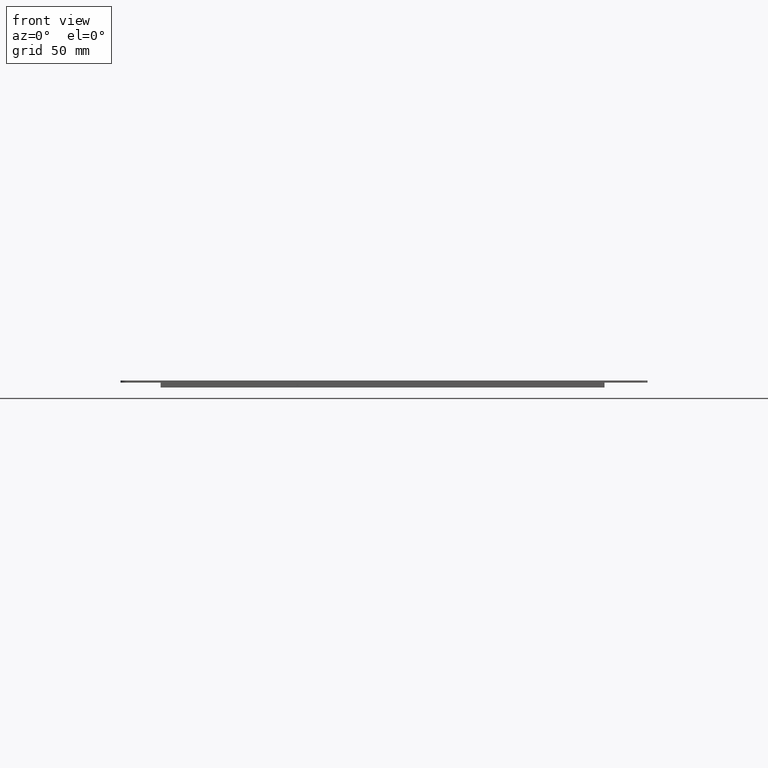
[diagram: clean part render]
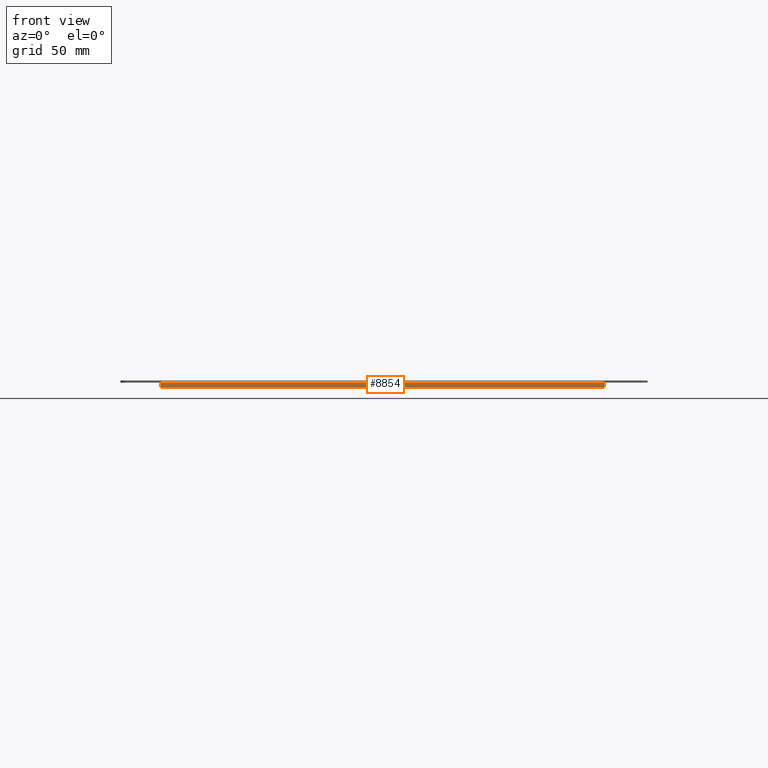
[diagram: same view with one face highlighted and labeled with its STEP entity id]
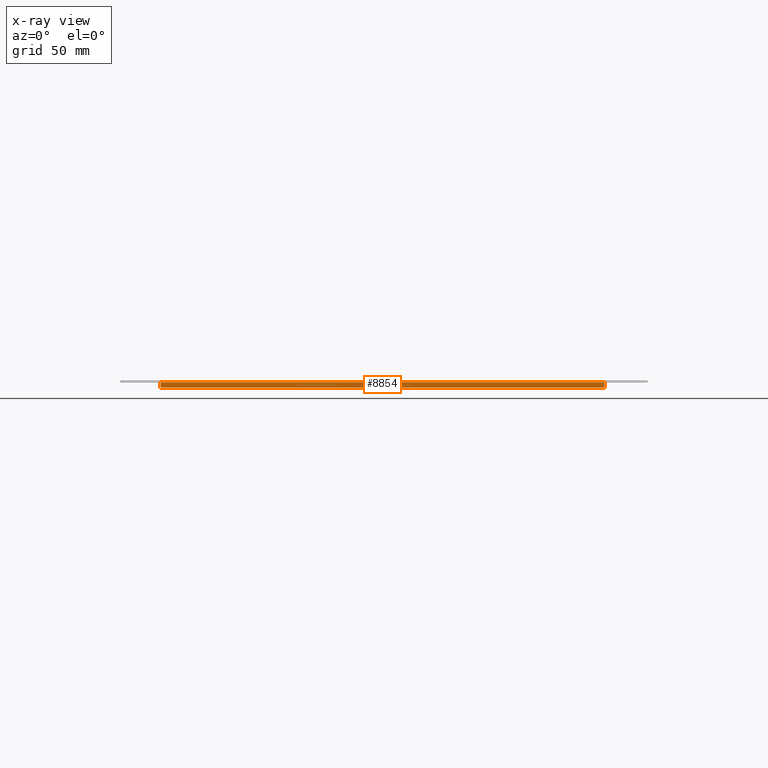
[diagram: x-ray of the same camera — body ghosted, the highlighted face saturated]
A machine part, front view. The second image highlights one B-rep face of the part: STEP entity #8854.
The next image is the same camera in x-ray: the body ghosted, the highlighted face saturated — about 2% of this face is hidden behind the body in this view.
In plain terms, the highlighted planar face has unit normal (0, -1, 0).
Its self-contained STEP definition (entity closure, byte-faithful):
#32=FACE_BOUND('',#915,.T.);
#33=FACE_BOUND('',#916,.T.);
#487=FACE_OUTER_BOUND('',#914,.T.);
#914=EDGE_LOOP('',(#7989,#7990,#7991,#7992));
#915=EDGE_LOOP('',(#7993,#7994,#7995,#7996));
#916=EDGE_LOOP('',(#7997,#7998,#7999,#8000));
#953=LINE('',#11519,#2198);
#961=LINE('',#11540,#2206);
#2139=LINE('',#13898,#3384);
#2144=LINE('',#13906,#3389);
#2145=LINE('',#13908,#3390);
#2147=LINE('',#13913,#3392);
#2150=LINE('',#13920,#3395);
#2155=LINE('',#13928,#3400);
#2156=LINE('',#13930,#3401);
#2159=LINE('',#13939,#3404);
#2160=LINE('',#13942,#3405);
#2161=LINE('',#13943,#3406);
#2198=VECTOR('',#9394,10.);
#2206=VECTOR('',#9410,10.);
#3384=VECTOR('',#11374,10.);
#3389=VECTOR('',#11383,10.);
#3390=VECTOR('',#11386,10.);
#3392=VECTOR('',#11390,10.);
#3395=VECTOR('',#11395,10.);
#3400=VECTOR('',#11404,10.);
#3401=VECTOR('',#11407,10.);
#3404=VECTOR('',#11418,10.);
#3405=VECTOR('',#11421,10.);
#3406=VECTOR('',#11422,10.);
#3439=VERTEX_POINT('',#11516);
#3440=VERTEX_POINT('',#11518);
#3448=VERTEX_POINT('',#11537);
#3449=VERTEX_POINT('',#11539);
#4234=VERTEX_POINT('',#13894);
#4236=VERTEX_POINT('',#13897);
#4238=VERTEX_POINT('',#13910);
#4239=VERTEX_POINT('',#13912);
#4240=VERTEX_POINT('',#13916);
#4242=VERTEX_POINT('',#13919);
#4245=VERTEX_POINT('',#13937);
#4246=VERTEX_POINT('',#13941);
#4289=EDGE_CURVE('',#3439,#3440,#953,.T.);
#4299=EDGE_CURVE('',#3449,#3448,#961,.T.);
#5477=EDGE_CURVE('',#4236,#4234,#2139,.T.);
#5482=EDGE_CURVE('',#4234,#3449,#2144,.T.);
#5483=EDGE_CURVE('',#3448,#4236,#2145,.T.);
#5485=EDGE_CURVE('',#4239,#4238,#2147,.T.);
#5488=EDGE_CURVE('',#4242,#4240,#2150,.T.);
#5493=EDGE_CURVE('',#4240,#4239,#2155,.T.);
#5494=EDGE_CURVE('',#4238,#4242,#2156,.T.);
#5497=EDGE_CURVE('',#3439,#4245,#2159,.T.);
#5498=EDGE_CURVE('',#4246,#4245,#2160,.T.);
#5499=EDGE_CURVE('',#3440,#4246,#2161,.T.);
#7989=ORIENTED_EDGE('',*,*,#4289,.F.);
#7990=ORIENTED_EDGE('',*,*,#5497,.T.);
#7991=ORIENTED_EDGE('',*,*,#5498,.F.);
#7992=ORIENTED_EDGE('',*,*,#5499,.F.);
#7993=ORIENTED_EDGE('',*,*,#5477,.T.);
#7994=ORIENTED_EDGE('',*,*,#5482,.T.);
#7995=ORIENTED_EDGE('',*,*,#4299,.T.);
#7996=ORIENTED_EDGE('',*,*,#5483,.T.);
#7997=ORIENTED_EDGE('',*,*,#5488,.T.);
#7998=ORIENTED_EDGE('',*,*,#5493,.T.);
#7999=ORIENTED_EDGE('',*,*,#5485,.T.);
#8000=ORIENTED_EDGE('',*,*,#5494,.T.);
#8429=PLANE('',#9311);
#8854=ADVANCED_FACE('',(#487,#32,#33),#8429,.T.);
#9311=AXIS2_PLACEMENT_3D('',#13940,#11419,#11420);
#9394=DIRECTION('',(1.,2.32608927027532E-16,0.));
#9410=DIRECTION('',(0.,0.,-1.));
#11374=DIRECTION('',(0.,0.,1.));
#11383=DIRECTION('',(1.,2.32608927027532E-16,0.));
#11386=DIRECTION('',(-1.,-2.32608927027532E-16,0.));
#11390=DIRECTION('',(0.,0.,-1.));
#11395=DIRECTION('',(0.,0.,1.));
#11404=DIRECTION('',(1.,2.32608927027532E-16,0.));
#11407=DIRECTION('',(-1.,-2.32608927027532E-16,0.));
#11418=DIRECTION('',(0.,0.,-1.));
#11419=DIRECTION('center_axis',(2.32608927027532E-16,-1.,0.));
#11420=DIRECTION('ref_axis',(-1.,-2.32608927027532E-16,0.));
#11421=DIRECTION('',(-1.,-2.32608927027532E-16,0.));
#11422=DIRECTION('',(0.,0.,-1.));
#11516=CARTESIAN_POINT('',(-115.3,-93.8,0.));
#11518=CARTESIAN_POINT('',(113.8,-93.7999999999999,0.));
#11519=CARTESIAN_POINT('',(-115.3,-93.8,0.));
#11537=CARTESIAN_POINT('',(13.7800000000001,-93.8,-1.35));
#11539=CARTESIAN_POINT('',(13.7800000000001,-93.8,-1.25));
#11540=CARTESIAN_POINT('',(13.7800000000001,-93.8,-0.625));
#13894=CARTESIAN_POINT('',(-13.7199999999999,-93.8,-1.25));
#13897=CARTESIAN_POINT('',(-13.7199999999999,-93.8,-1.35));
#13898=CARTESIAN_POINT('',(-13.7199999999999,-93.8,-0.625));
#13906=CARTESIAN_POINT('',(56.7900000000001,-93.8,-1.25));
#13908=CARTESIAN_POINT('',(56.7900000000001,-93.8,-1.35));
#13910=CARTESIAN_POINT('',(-23.7199999999999,-93.8,-1.35));
#13912=CARTESIAN_POINT('',(-23.7199999999999,-93.8,-1.25));
#13913=CARTESIAN_POINT('',(-23.7199999999999,-93.8,-0.625));
#13916=CARTESIAN_POINT('',(-45.2199999999999,-93.8,-1.25));
#13919=CARTESIAN_POINT('',(-45.2199999999999,-93.8,-1.35));
#13920=CARTESIAN_POINT('',(-45.2199999999999,-93.8,-0.625));
#13928=CARTESIAN_POINT('',(39.6650000000001,-93.8,-1.25));
#13930=CARTESIAN_POINT('',(39.6650000000001,-93.8,-1.35));
#13937=CARTESIAN_POINT('',(-115.3,-93.8,-2.5));
#13939=CARTESIAN_POINT('',(-115.3,-93.8,0.));
#13940=CARTESIAN_POINT('Origin',(113.8,-93.7999999999999,0.));
#13941=CARTESIAN_POINT('',(113.8,-93.7999999999999,-2.5));
#13942=CARTESIAN_POINT('',(-115.3,-93.8,-2.5));
#13943=CARTESIAN_POINT('',(113.8,-93.7999999999999,0.));